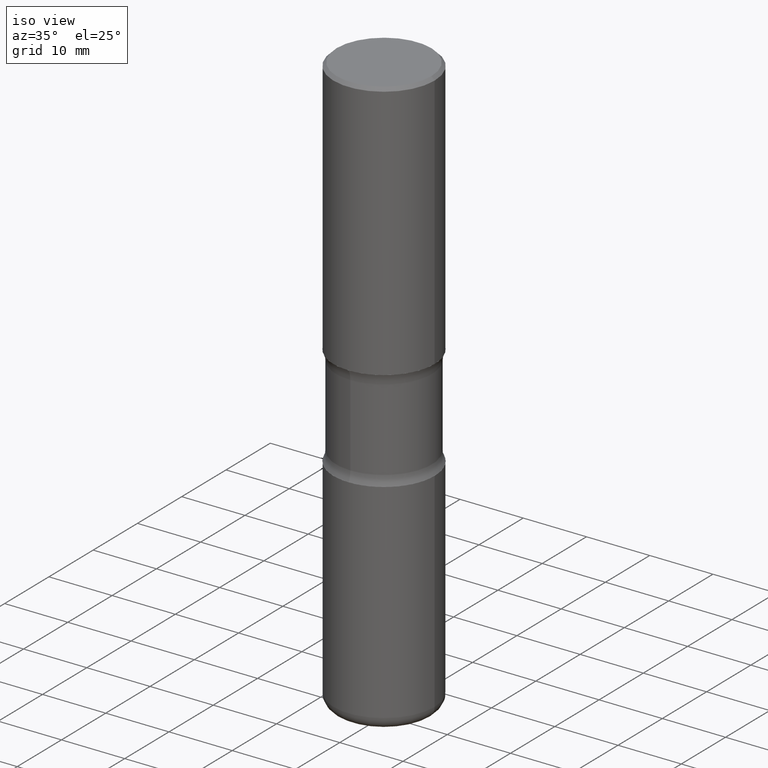
[diagram: clean part render]
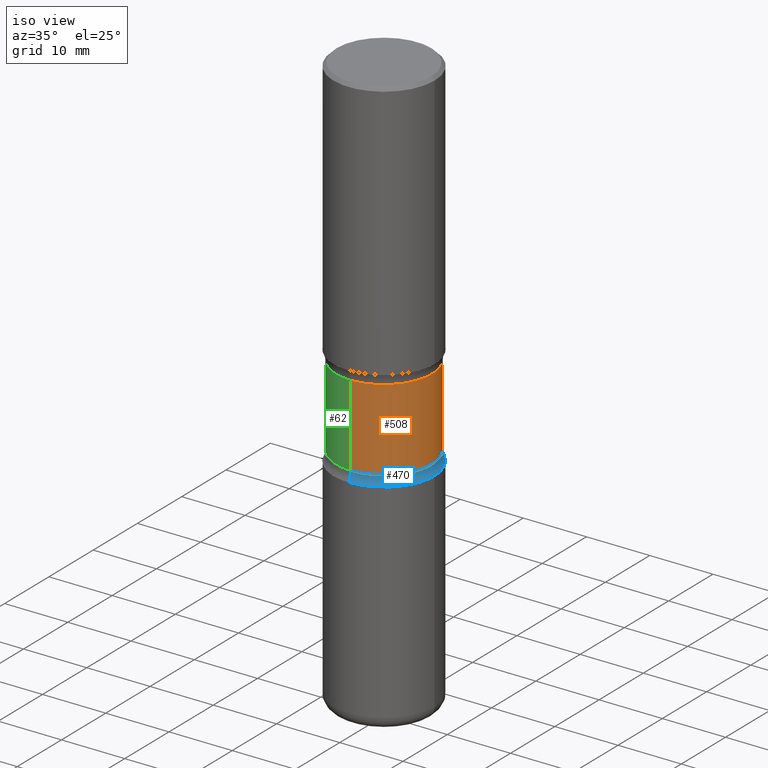
[diagram: same view with three faces highlighted in distinct colors, each labeled with its STEP entity id]
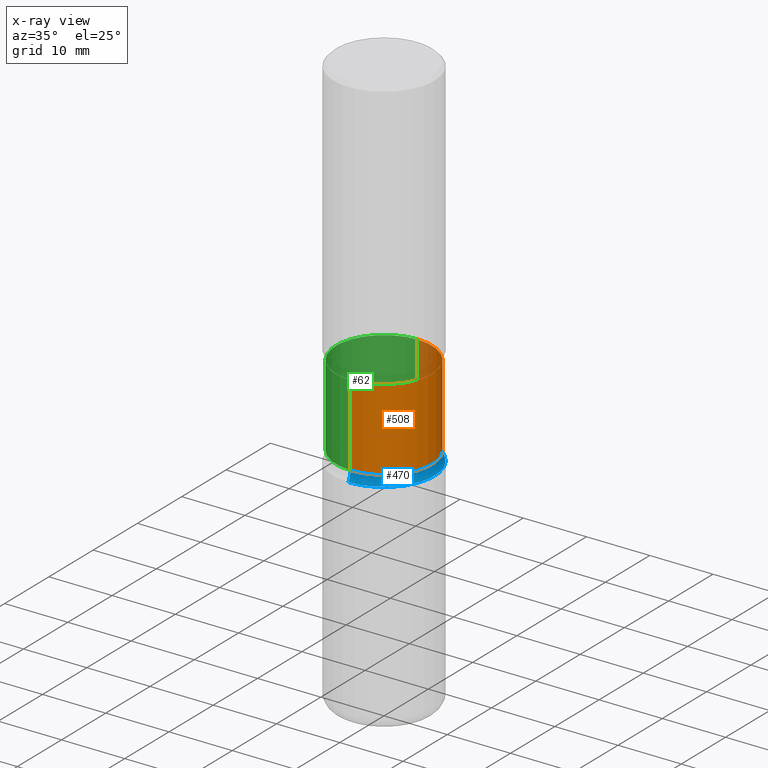
[diagram: x-ray of the same camera — body ghosted, the three highlighted faces saturated]
A machine part, iso view with three faces highlighted in distinct colors.
The next image is the same camera in x-ray (body ghosted, the three faces saturated) — at least one of them is partly hidden behind the body in this view.
Their STEP definitions:

[orange] entity #508 — the highlighted cylindrical surface (partial cylindrical patch) has radius 7.5946 mm, axis along (0, -0, -1).
#10 = DIRECTION ( 'NONE',  ( 2.459321926164491276E-29, -3.471642882562086921E-15, -1.000000000000000000 ) ) ;
#19 = AXIS2_PLACEMENT_3D ( 'NONE', #532, #147, #423 ) ;
#74 = CARTESIAN_POINT ( 'NONE',  ( -2.051288901333598203E-15, -0.2990000000000125335, -3.622099999999999653 ) ) ;
#76 = VECTOR ( 'NONE', #10, 39.37007874015748143 ) ;
#105 = VERTEX_POINT ( 'NONE', #245 ) ;
#125 = VERTEX_POINT ( 'NONE', #206 ) ;
#129 = FACE_OUTER_BOUND ( 'NONE', #452, .T. ) ;
#147 = DIRECTION ( 'NONE',  ( 2.459321926164491276E-29, -3.471642882562086527E-15, -1.000000000000000000 ) ) ;
#162 = LINE ( 'NONE', #74, #179 ) ;
#163 = DIRECTION ( 'NONE',  ( 2.459321926164491276E-29, -3.471642882562086921E-15, -1.000000000000000000 ) ) ;
#168 = EDGE_CURVE ( 'NONE', #192, #105, #383, .T. ) ;
#179 = VECTOR ( 'NONE', #163, 39.37007874015748143 ) ;
#192 = VERTEX_POINT ( 'NONE', #541 ) ;
#206 = CARTESIAN_POINT ( 'NONE',  ( -2.106001372865876107E-15, -0.2990000000000057612, -1.675299079371133315 ) ) ;
#218 = CIRCLE ( 'NONE', #302, 0.2989999999999998770 ) ;
#229 = ORIENTED_EDGE ( 'NONE', *, *, #321, .F. ) ;
#230 = CYLINDRICAL_SURFACE ( 'NONE', #474, 0.2989999999999998770 ) ;
#234 = EDGE_CURVE ( 'NONE', #125, #492, #162, .T. ) ;
#245 = CARTESIAN_POINT ( 'NONE',  ( 2.087905840628246458E-15, 0.2989999999999923275, -2.183000920628868524 ) ) ;
#269 = DIRECTION ( 'NONE',  ( 2.459321926164491276E-29, -3.471642882562086527E-15, -1.000000000000000000 ) ) ;
#302 = AXIS2_PLACEMENT_3D ( 'NONE', #471, #407, #314 ) ;
#314 = DIRECTION ( 'NONE',  ( 6.982962677686266711E-15, 1.000000000000000000, -3.654646145370253678E-15 ) ) ;
#315 = ORIENTED_EDGE ( 'NONE', *, *, #168, .F. ) ;
#317 = ORIENTED_EDGE ( 'NONE', *, *, #427, .T. ) ;
#321 = EDGE_CURVE ( 'NONE', #105, #492, #455, .T. ) ;
#383 = LINE ( 'NONE', #501, #76 ) ;
#404 = CARTESIAN_POINT ( 'NONE',  ( -2.106001372865861908E-15, -0.2990000000000075375, -2.183000920628866304 ) ) ;
#407 = DIRECTION ( 'NONE',  ( 2.459321926164491276E-29, -3.471642882562086527E-15, -1.000000000000000000 ) ) ;
#423 = DIRECTION ( 'NONE',  ( 6.982962677686266711E-15, 1.000000000000000000, -3.654646145370252890E-15 ) ) ;
#427 = EDGE_CURVE ( 'NONE', #192, #125, #218, .T. ) ;
#452 = EDGE_LOOP ( 'NONE', ( #317, #518, #229, #315 ) ) ;
#455 = CIRCLE ( 'NONE', #19, 0.2989999999999999325 ) ;
#458 = DIRECTION ( 'NONE',  ( 6.982962677686266711E-15, 1.000000000000000000, -3.654646145370253678E-15 ) ) ;
#471 = CARTESIAN_POINT ( 'NONE',  ( 4.089011972234947425E-29, -5.860559604801939895E-15, -1.675299079371134425 ) ) ;
#474 = AXIS2_PLACEMENT_3D ( 'NONE', #480, #269, #458 ) ;
#480 = CARTESIAN_POINT ( 'NONE',  ( 8.876822162214736083E-29, -1.261915716466845936E-14, -3.622100000000000541 ) ) ;
#492 = VERTEX_POINT ( 'NONE', #404 ) ;
#501 = CARTESIAN_POINT ( 'NONE',  ( 2.087905840628281562E-15, 0.2989999999999872760, -3.622100000000001874 ) ) ;
#508 = ADVANCED_FACE ( 'NONE', ( #129 ), #230, .T. ) ;
#518 = ORIENTED_EDGE ( 'NONE', *, *, #234, .T. ) ;
#532 = CARTESIAN_POINT ( 'NONE',  ( 5.337614242394174202E-29, -7.623119088468014840E-15, -2.183000920628867636 ) ) ;
#541 = CARTESIAN_POINT ( 'NONE',  ( 2.087905840628233836E-15, 0.2989999999999939928, -1.675299079371135536 ) ) ;

[blue] entity #470 — the highlighted toroidal blend (fillet) surface has major radius 10.7696 mm and minor (blend) radius 3.175 mm.
#19 = AXIS2_PLACEMENT_3D ( 'NONE', #532, #147, #423 ) ;
#31 = ORIENTED_EDGE ( 'NONE', *, *, #173, .F. ) ;
#59 = ORIENTED_EDGE ( 'NONE', *, *, #321, .T. ) ;
#71 = EDGE_LOOP ( 'NONE', ( #440, #31, #318, #59 ) ) ;
#84 = FACE_OUTER_BOUND ( 'NONE', #71, .T. ) ;
#88 = DIRECTION ( 'NONE',  ( 2.459321926164491276E-29, -3.471642882562086527E-15, -1.000000000000000000 ) ) ;
#96 = EDGE_CURVE ( 'NONE', #559, #492, #122, .T. ) ;
#105 = VERTEX_POINT ( 'NONE', #245 ) ;
#115 = DIRECTION ( 'NONE',  ( 2.459321926164491276E-29, -3.471642882562086527E-15, -1.000000000000000000 ) ) ;
#122 = CIRCLE ( 'NONE', #165, 0.1250000000000000278 ) ;
#140 = CARTESIAN_POINT ( 'NONE',  ( -2.160713844398089720E-15, -0.3149500000000080013, -2.244099999999999984 ) ) ;
#147 = DIRECTION ( 'NONE',  ( 2.459321926164491276E-29, -3.471642882562086527E-15, -1.000000000000000000 ) ) ;
#165 = AXIS2_PLACEMENT_3D ( 'NONE', #540, #280, #199 ) ;
#169 = CARTESIAN_POINT ( 'NONE',  ( 2.960776175339029797E-15, 0.4239999999999923275, -2.183000920628868968 ) ) ;
#173 = EDGE_CURVE ( 'NONE', #403, #559, #346, .T. ) ;
#194 = CARTESIAN_POINT ( 'NONE',  ( 5.487876547960068115E-29, -7.835233272497907073E-15, -2.244100000000000872 ) ) ;
#199 = DIRECTION ( 'NONE',  ( 6.860497997771532351E-15, 1.000000000000000000, 0.000000000000000000 ) ) ;
#224 = CARTESIAN_POINT ( 'NONE',  ( 5.338460655271330823E-29, -7.621906977053098648E-15, -2.183000920628867636 ) ) ;
#245 = CARTESIAN_POINT ( 'NONE',  ( 2.087905840628246458E-15, 0.2989999999999923275, -2.183000920628868524 ) ) ;
#251 = DIRECTION ( 'NONE',  ( -6.982962677686265133E-15, -1.000000000000000000, 0.000000000000000000 ) ) ;
#258 = EDGE_CURVE ( 'NONE', #403, #105, #539, .T. ) ;
#261 = DIRECTION ( 'NONE',  ( 6.982962677686265922E-15, 1.000000000000000000, -3.471642882562086527E-15 ) ) ;
#280 = DIRECTION ( 'NONE',  ( 1.000000000000000000, -6.860497997771530774E-15, 4.841041830643989638E-29 ) ) ;
#290 = DIRECTION ( 'NONE',  ( 6.982962677686264344E-15, 1.000000000000000000, -3.469564049740291192E-15 ) ) ;
#318 = ORIENTED_EDGE ( 'NONE', *, *, #258, .T. ) ;
#321 = EDGE_CURVE ( 'NONE', #105, #492, #455, .T. ) ;
#346 = CIRCLE ( 'NONE', #552, 0.3149500000000001743 ) ;
#350 = DIRECTION ( 'NONE',  ( -1.000000000000000000, 6.982962677686265922E-15, -4.883557194083112340E-29 ) ) ;
#377 = AXIS2_PLACEMENT_3D ( 'NONE', #224, #88, #261 ) ;
#403 = VERTEX_POINT ( 'NONE', #517 ) ;
#404 = CARTESIAN_POINT ( 'NONE',  ( -2.106001372865861908E-15, -0.2990000000000075375, -2.183000920628866304 ) ) ;
#423 = DIRECTION ( 'NONE',  ( 6.982962677686266711E-15, 1.000000000000000000, -3.654646145370252890E-15 ) ) ;
#426 = AXIS2_PLACEMENT_3D ( 'NONE', #169, #350, #251 ) ;
#440 = ORIENTED_EDGE ( 'NONE', *, *, #96, .F. ) ;
#455 = CIRCLE ( 'NONE', #19, 0.2989999999999999325 ) ;
#470 = ADVANCED_FACE ( 'NONE', ( #84 ), #526, .F. ) ;
#492 = VERTEX_POINT ( 'NONE', #404 ) ;
#517 = CARTESIAN_POINT ( 'NONE',  ( 2.199284095337345091E-15, 0.3149499999999922917, -2.244100000000002204 ) ) ;
#526 = TOROIDAL_SURFACE ( 'NONE', #377, 0.4239999999999999880, 0.1250000000000000278 ) ;
#532 = CARTESIAN_POINT ( 'NONE',  ( 5.337614242394174202E-29, -7.623119088468014840E-15, -2.183000920628867636 ) ) ;
#539 = CIRCLE ( 'NONE', #426, 0.1250000000000000278 ) ;
#540 = CARTESIAN_POINT ( 'NONE',  ( -2.908851151055075541E-15, -0.4240000000000075930, -2.183000920628866304 ) ) ;
#552 = AXIS2_PLACEMENT_3D ( 'NONE', #194, #115, #290 ) ;
#559 = VERTEX_POINT ( 'NONE', #140 ) ;

[green] entity #62 — the highlighted cylindrical surface (partial cylindrical patch) has radius 7.5946 mm, axis along (0, -0, -1).
#10 = DIRECTION ( 'NONE',  ( 2.459321926164491276E-29, -3.471642882562086921E-15, -1.000000000000000000 ) ) ;
#22 = FACE_OUTER_BOUND ( 'NONE', #176, .T. ) ;
#39 = DIRECTION ( 'NONE',  ( 2.459321926164491276E-29, -3.471642882562086527E-15, -1.000000000000000000 ) ) ;
#42 = AXIS2_PLACEMENT_3D ( 'NONE', #387, #73, #209 ) ;
#51 = ORIENTED_EDGE ( 'NONE', *, *, #497, .F. ) ;
#62 = ADVANCED_FACE ( 'NONE', ( #22 ), #505, .T. ) ;
#64 = CIRCLE ( 'NONE', #368, 0.2989999999999999325 ) ;
#73 = DIRECTION ( 'NONE',  ( 2.459321926164491276E-29, -3.471642882562086527E-15, -1.000000000000000000 ) ) ;
#74 = CARTESIAN_POINT ( 'NONE',  ( -2.051288901333598203E-15, -0.2990000000000125335, -3.622099999999999653 ) ) ;
#76 = VECTOR ( 'NONE', #10, 39.37007874015748143 ) ;
#105 = VERTEX_POINT ( 'NONE', #245 ) ;
#107 = AXIS2_PLACEMENT_3D ( 'NONE', #181, #39, #221 ) ;
#125 = VERTEX_POINT ( 'NONE', #206 ) ;
#162 = LINE ( 'NONE', #74, #179 ) ;
#163 = DIRECTION ( 'NONE',  ( 2.459321926164491276E-29, -3.471642882562086921E-15, -1.000000000000000000 ) ) ;
#168 = EDGE_CURVE ( 'NONE', #192, #105, #383, .T. ) ;
#174 = CARTESIAN_POINT ( 'NONE',  ( 5.337614242394174202E-29, -7.623119088468014840E-15, -2.183000920628867636 ) ) ;
#176 = EDGE_LOOP ( 'NONE', ( #240, #235, #323, #51 ) ) ;
#179 = VECTOR ( 'NONE', #163, 39.37007874015748143 ) ;
#181 = CARTESIAN_POINT ( 'NONE',  ( 4.089011972234947425E-29, -5.860559604801939895E-15, -1.675299079371134425 ) ) ;
#192 = VERTEX_POINT ( 'NONE', #541 ) ;
#206 = CARTESIAN_POINT ( 'NONE',  ( -2.106001372865876107E-15, -0.2990000000000057612, -1.675299079371133315 ) ) ;
#209 = DIRECTION ( 'NONE',  ( 6.982962677686266711E-15, 1.000000000000000000, -3.654646145370253678E-15 ) ) ;
#221 = DIRECTION ( 'NONE',  ( 6.982962677686266711E-15, 1.000000000000000000, -3.654646145370253678E-15 ) ) ;
#234 = EDGE_CURVE ( 'NONE', #125, #492, #162, .T. ) ;
#235 = ORIENTED_EDGE ( 'NONE', *, *, #450, .T. ) ;
#240 = ORIENTED_EDGE ( 'NONE', *, *, #234, .F. ) ;
#245 = CARTESIAN_POINT ( 'NONE',  ( 2.087905840628246458E-15, 0.2989999999999923275, -2.183000920628868524 ) ) ;
#316 = DIRECTION ( 'NONE',  ( 6.982962677686266711E-15, 1.000000000000000000, -3.654646145370252890E-15 ) ) ;
#322 = CIRCLE ( 'NONE', #107, 0.2989999999999998770 ) ;
#323 = ORIENTED_EDGE ( 'NONE', *, *, #168, .T. ) ;
#368 = AXIS2_PLACEMENT_3D ( 'NONE', #174, #560, #316 ) ;
#383 = LINE ( 'NONE', #501, #76 ) ;
#387 = CARTESIAN_POINT ( 'NONE',  ( 8.876822162214736083E-29, -1.261915716466845936E-14, -3.622100000000000541 ) ) ;
#404 = CARTESIAN_POINT ( 'NONE',  ( -2.106001372865861908E-15, -0.2990000000000075375, -2.183000920628866304 ) ) ;
#450 = EDGE_CURVE ( 'NONE', #125, #192, #322, .T. ) ;
#492 = VERTEX_POINT ( 'NONE', #404 ) ;
#497 = EDGE_CURVE ( 'NONE', #492, #105, #64, .T. ) ;
#501 = CARTESIAN_POINT ( 'NONE',  ( 2.087905840628281562E-15, 0.2989999999999872760, -3.622100000000001874 ) ) ;
#505 = CYLINDRICAL_SURFACE ( 'NONE', #42, 0.2989999999999998770 ) ;
#541 = CARTESIAN_POINT ( 'NONE',  ( 2.087905840628233836E-15, 0.2989999999999939928, -1.675299079371135536 ) ) ;
#560 = DIRECTION ( 'NONE',  ( 2.459321926164491276E-29, -3.471642882562086527E-15, -1.000000000000000000 ) ) ;